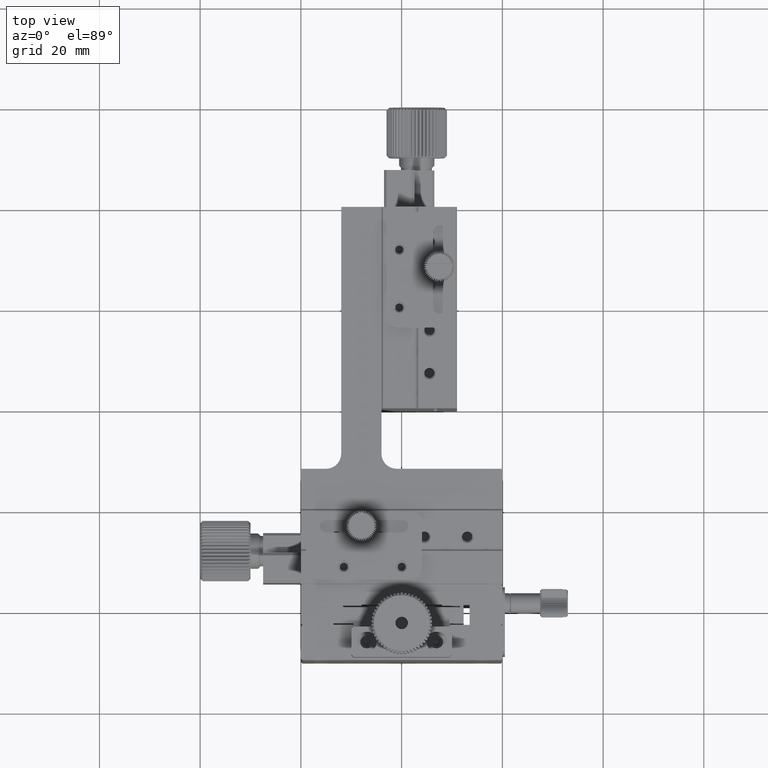
[diagram: clean part render]
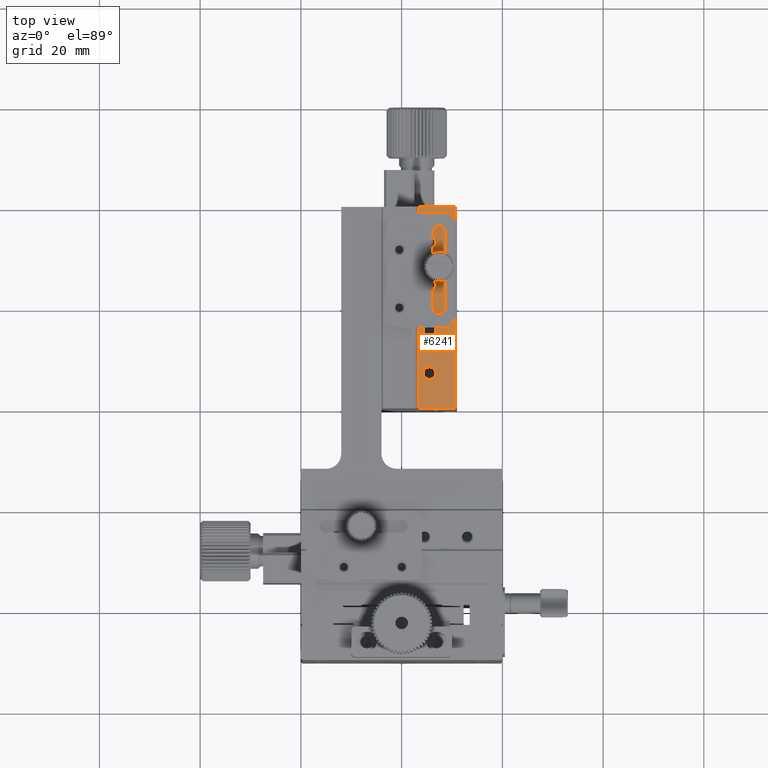
[diagram: same view with one face highlighted and labeled with its STEP entity id]
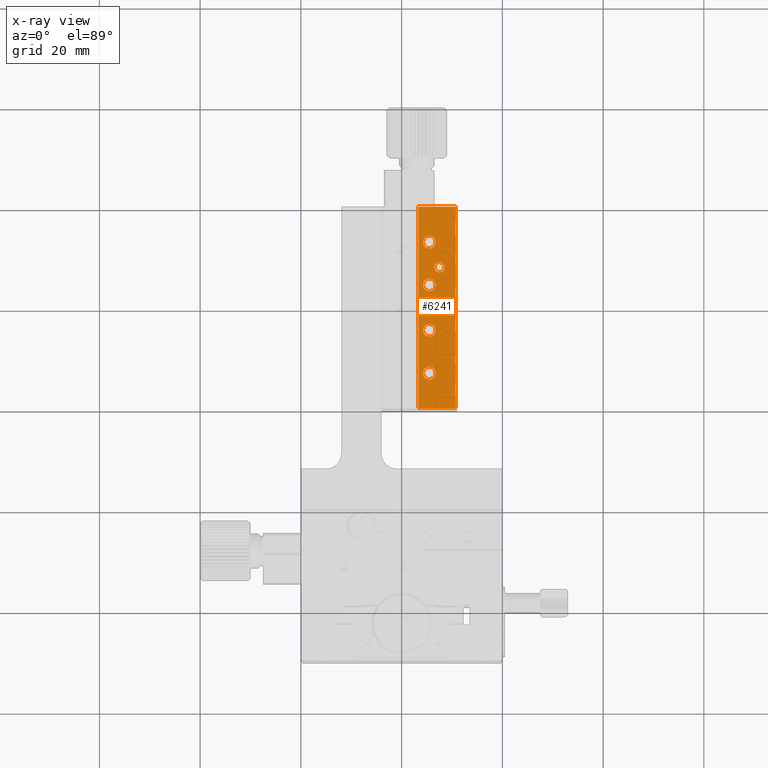
[diagram: x-ray of the same camera — body ghosted, the highlighted face saturated]
A machine part, top view. The second image highlights one B-rep face of the part: STEP entity #6241.
The next image is the same camera in x-ray: the body ghosted, the highlighted face saturated — about 0% of this face is hidden behind the body in this view.
In plain terms, the highlighted planar face has unit normal (-0, -0, -1).
Its self-contained STEP definition (entity closure, byte-faithful):
#170 = EDGE_CURVE ( 'NONE', #13786, #22837, #59450, .T. ) ;
#585 = VERTEX_POINT ( 'NONE', #33105 ) ;
#817 = DIRECTION ( 'NONE',  ( -0.000000000000000000, 1.000000000000000000, -0.000000000000000000 ) ) ;
#1633 = FACE_BOUND ( 'NONE', #48093, .T. ) ;
#1957 = EDGE_CURVE ( 'NONE', #41205, #41205, #47869, .T. ) ;
#3035 = CARTESIAN_POINT ( 'NONE',  ( 25.50000000000000355, 34.25000000004047251, 4.898587196589409870E-15 ) ) ;
#4115 = DIRECTION ( 'NONE',  ( -1.000000000000000000, -0.000000000000000000, -0.000000000000000000 ) ) ;
#5064 = DIRECTION ( 'NONE',  ( 0.000000000000000000, 0.000000000000000000, 1.000000000000000000 ) ) ;
#5956 = EDGE_LOOP ( 'NONE', ( #11761 ) ) ;
#6241 = ADVANCED_FACE ( 'NONE', ( #43301, #1633, #57255, #34149, #43605, #20780 ), #52683, .F. ) ;
#8106 = EDGE_LOOP ( 'NONE', ( #29186 ) ) ;
#11054 = CARTESIAN_POINT ( 'NONE',  ( 30.69999999999998863, 19.99999999999999645, -9.256756367381289477E-15 ) ) ;
#11361 = DIRECTION ( 'NONE',  ( 1.000000000000000000, 0.000000000000000000, -1.199279573124600109E-16 ) ) ;
#11761 = ORIENTED_EDGE ( 'NONE', *, *, #15363, .F. ) ;
#12835 = CARTESIAN_POINT ( 'NONE',  ( 30.69999999999998863, 60.00000000000000000, -9.387402729165822738E-15 ) ) ;
#13344 = EDGE_LOOP ( 'NONE', ( #39358 ) ) ;
#13786 = VERTEX_POINT ( 'NONE', #12835 ) ;
#14778 = AXIS2_PLACEMENT_3D ( 'NONE', #50088, #16975, #49782 ) ;
#14930 = VERTEX_POINT ( 'NONE', #32900 ) ;
#15263 = EDGE_LOOP ( 'NONE', ( #24617 ) ) ;
#15363 = EDGE_CURVE ( 'NONE', #31292, #31292, #52839, .T. ) ;
#16975 = DIRECTION ( 'NONE',  ( 0.000000000000000000, 0.000000000000000000, 1.000000000000000000 ) ) ;
#17942 = AXIS2_PLACEMENT_3D ( 'NONE', #28408, #19294, #46966 ) ;
#18639 = ORIENTED_EDGE ( 'NONE', *, *, #41575, .T. ) ;
#18705 = CARTESIAN_POINT ( 'NONE',  ( 27.50000000000000000, 49.00000000000000000, 4.898587196589409870E-15 ) ) ;
#19294 = DIRECTION ( 'NONE',  ( 0.000000000000000000, 0.000000000000000000, 1.000000000000000000 ) ) ;
#19659 = LINE ( 'NONE', #28475, #51453 ) ;
#20103 = LINE ( 'NONE', #38664, #38367 ) ;
#20780 = FACE_BOUND ( 'NONE', #8106, .T. ) ;
#22033 = AXIS2_PLACEMENT_3D ( 'NONE', #11054, #48148, #11361 ) ;
#22204 = CARTESIAN_POINT ( 'NONE',  ( 27.50000000000000000, 48.00000000000000000, 4.898587196589409870E-15 ) ) ;
#22837 = VERTEX_POINT ( 'NONE', #48043 ) ;
#24617 = ORIENTED_EDGE ( 'NONE', *, *, #47467, .F. ) ;
#24917 = LINE ( 'NONE', #39202, #54639 ) ;
#27841 = ORIENTED_EDGE ( 'NONE', *, *, #36730, .F. ) ;
#28408 = CARTESIAN_POINT ( 'NONE',  ( 25.50000000000000355, 26.99999999999999645, 4.898573926876133222E-15 ) ) ;
#28475 = CARTESIAN_POINT ( 'NONE',  ( 23.30000000000000782, 19.99999999999999645, -8.369289483269090134E-15 ) ) ;
#28552 = DIRECTION ( 'NONE',  ( 0.000000000000000000, -1.000000000000000000, 0.000000000000000000 ) ) ;
#28619 = CIRCLE ( 'NONE', #17942, 1.249999999985901278 ) ;
#29186 = ORIENTED_EDGE ( 'NONE', *, *, #38430, .F. ) ;
#31292 = VERTEX_POINT ( 'NONE', #3035 ) ;
#31592 = CARTESIAN_POINT ( 'NONE',  ( 25.50000000000000355, 43.24999999999818101, 4.898587196589409870E-15 ) ) ;
#32900 = CARTESIAN_POINT ( 'NONE',  ( 25.50000000000000355, 25.75000000001409362, 4.898573926876133222E-15 ) ) ;
#32905 = DIRECTION ( 'NONE',  ( -0.000000000000000000, 1.000000000000000000, -0.000000000000000000 ) ) ;
#33105 = CARTESIAN_POINT ( 'NONE',  ( 25.50000000000000355, 51.74999999996771294, 4.898587196589409870E-15 ) ) ;
#33232 = ORIENTED_EDGE ( 'NONE', *, *, #1957, .F. ) ;
#34149 = FACE_BOUND ( 'NONE', #15263, .T. ) ;
#34945 = CIRCLE ( 'NONE', #43685, 1.250000000001818989 ) ;
#36373 = CARTESIAN_POINT ( 'NONE',  ( 31.00000000000000000, 60.00000000000000000, -9.250251154346389072E-15 ) ) ;
#36392 = AXIS2_PLACEMENT_3D ( 'NONE', #51355, #55604, #28552 ) ;
#36730 = EDGE_CURVE ( 'NONE', #46493, #36994, #24917, .T. ) ;
#36994 = VERTEX_POINT ( 'NONE', #42203 ) ;
#37024 = CARTESIAN_POINT ( 'NONE',  ( 25.50000000000000355, 44.50000000000000000, 4.898587196589409870E-15 ) ) ;
#37323 = DIRECTION ( 'NONE',  ( 0.000000000000000000, -1.000000000000000000, 0.000000000000000000 ) ) ;
#37344 = EDGE_LOOP ( 'NONE', ( #50713, #27841, #18639, #55657 ) ) ;
#38367 = VECTOR ( 'NONE', #32905, 1000.000000000000000 ) ;
#38430 = EDGE_CURVE ( 'NONE', #14930, #14930, #28619, .T. ) ;
#38664 = CARTESIAN_POINT ( 'NONE',  ( 30.69999999999998863, 19.99999999999999645, -9.521301697467799891E-15 ) ) ;
#39202 = CARTESIAN_POINT ( 'NONE',  ( 31.00000000000000000, 19.99999999999999645, -9.250251154346389072E-15 ) ) ;
#39358 = ORIENTED_EDGE ( 'NONE', *, *, #52444, .F. ) ;
#41205 = VERTEX_POINT ( 'NONE', #18705 ) ;
#41575 = EDGE_CURVE ( 'NONE', #46493, #13786, #20103, .T. ) ;
#42203 = CARTESIAN_POINT ( 'NONE',  ( 23.30000000000000782, 19.99999999999999645, -8.426049579347532946E-15 ) ) ;
#43301 = FACE_OUTER_BOUND ( 'NONE', #37344, .T. ) ;
#43605 = FACE_BOUND ( 'NONE', #5956, .T. ) ;
#43685 = AXIS2_PLACEMENT_3D ( 'NONE', #37024, #5064, #37323 ) ;
#45306 = VERTEX_POINT ( 'NONE', #31592 ) ;
#46493 = VERTEX_POINT ( 'NONE', #53282 ) ;
#46966 = DIRECTION ( 'NONE',  ( 0.000000000000000000, -1.000000000000000000, 0.000000000000000000 ) ) ;
#47467 = EDGE_CURVE ( 'NONE', #45306, #45306, #34945, .T. ) ;
#47511 = EDGE_CURVE ( 'NONE', #36994, #22837, #19659, .T. ) ;
#47869 = CIRCLE ( 'NONE', #58564, 1.000000000000000888 ) ;
#48043 = CARTESIAN_POINT ( 'NONE',  ( 23.30000000000000782, 60.00000000000000000, -8.632739033822088781E-15 ) ) ;
#48093 = EDGE_LOOP ( 'NONE', ( #33232 ) ) ;
#48148 = DIRECTION ( 'NONE',  ( -1.199279573124600109E-16, -0.000000000000000000, -1.000000000000000000 ) ) ;
#49782 = DIRECTION ( 'NONE',  ( 0.000000000000000000, -1.000000000000000000, 0.000000000000000000 ) ) ;
#50088 = CARTESIAN_POINT ( 'NONE',  ( 25.50000000000000355, 53.00000000000000000, 4.898587196589409870E-15 ) ) ;
#50713 = ORIENTED_EDGE ( 'NONE', *, *, #47511, .F. ) ;
#51355 = CARTESIAN_POINT ( 'NONE',  ( 25.50000000000000355, 35.50000000000000000, 4.898587196589409870E-15 ) ) ;
#51453 = VECTOR ( 'NONE', #817, 1000.000000000000000 ) ;
#52444 = EDGE_CURVE ( 'NONE', #585, #585, #54557, .T. ) ;
#52683 = PLANE ( 'NONE',  #22033 ) ;
#52839 = CIRCLE ( 'NONE', #36392, 1.249999999959526598 ) ;
#53158 = DIRECTION ( 'NONE',  ( -1.000000000000000000, -0.000000000000000000, -0.000000000000000000 ) ) ;
#53282 = CARTESIAN_POINT ( 'NONE',  ( 30.69999999999998863, 19.99999999999999645, -9.333192620541544361E-15 ) ) ;
#54557 = CIRCLE ( 'NONE', #14778, 1.250000000032287728 ) ;
#54639 = VECTOR ( 'NONE', #53158, 1000.000000000000000 ) ;
#55604 = DIRECTION ( 'NONE',  ( 0.000000000000000000, 0.000000000000000000, 1.000000000000000000 ) ) ;
#55612 = DIRECTION ( 'NONE',  ( 0.000000000000000000, 1.000000000000000000, 0.000000000000000000 ) ) ;
#55657 = ORIENTED_EDGE ( 'NONE', *, *, #170, .T. ) ;
#57255 = FACE_BOUND ( 'NONE', #13344, .T. ) ;
#58564 = AXIS2_PLACEMENT_3D ( 'NONE', #22204, #59269, #55612 ) ;
#59269 = DIRECTION ( 'NONE',  ( -0.000000000000000000, -0.000000000000000000, 1.000000000000000000 ) ) ;
#59442 = VECTOR ( 'NONE', #4115, 1000.000000000000000 ) ;
#59450 = LINE ( 'NONE', #36373, #59442 ) ;